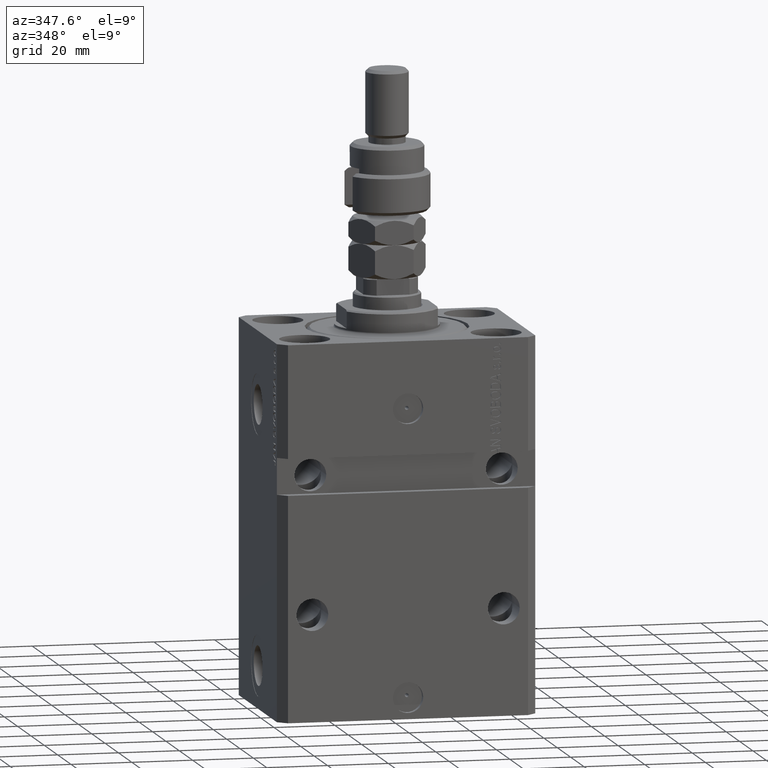
[diagram: clean part render]
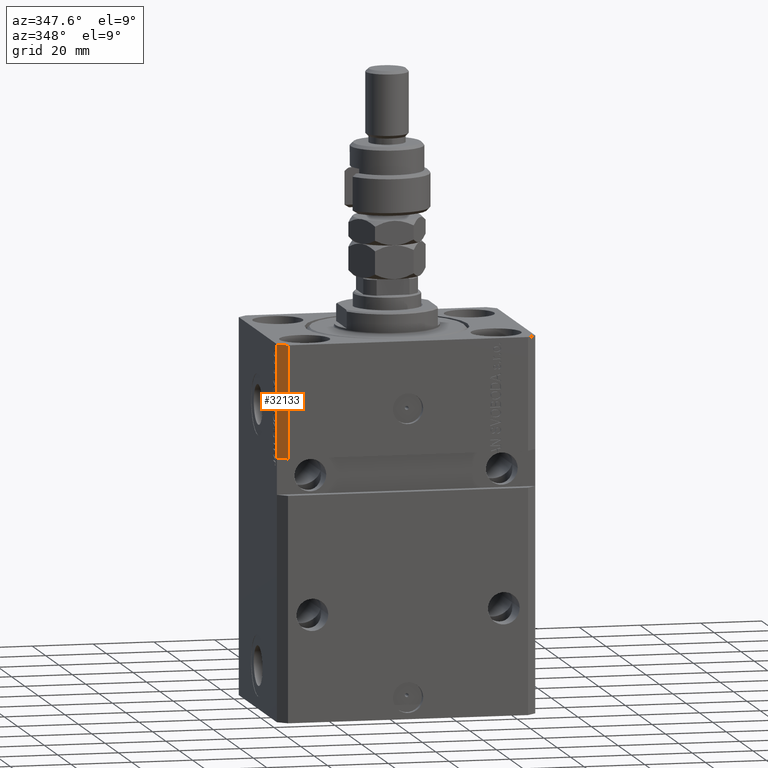
[diagram: same view with one face highlighted and labeled with its STEP entity id]
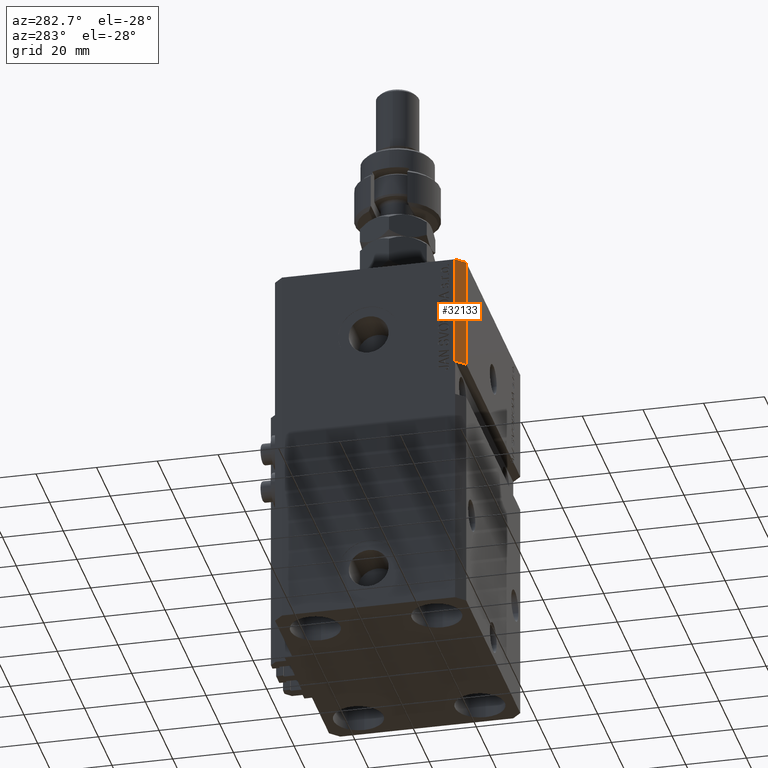
[diagram: same view with one face highlighted and labeled with its STEP entity id]
A machine part, auxiliary view. The second image highlights one B-rep face of the part: STEP entity #32133.
A second angle (auxiliary view) of the same face is appended — the face is thin or edge-on in the first view.
In plain terms, the highlighted planar face has unit normal (-0.7071, -0.7071, 0).
Its self-contained STEP definition (entity closure, byte-faithful):
#61 = ORIENTED_EDGE ( 'NONE', *, *, #24385, .T. ) ;
#376 = EDGE_CURVE ( 'NONE', #14685, #19723, #27677, .T. ) ;
#3652 = LINE ( 'NONE', #47149, #37946 ) ;
#8353 = LINE ( 'NONE', #24294, #21788 ) ;
#12322 = VERTEX_POINT ( 'NONE', #47885 ) ;
#13865 = DIRECTION ( 'NONE',  ( -0.7071067811865479058, -0.7071067811865472397, 0.000000000000000000 ) ) ;
#14685 = VERTEX_POINT ( 'NONE', #35035 ) ;
#16493 = LINE ( 'NONE', #20596, #26536 ) ;
#17205 = CARTESIAN_POINT ( 'NONE',  ( -42.50000000000000000, -28.50000000000000000, -123.0000000000000000 ) ) ;
#19723 = VERTEX_POINT ( 'NONE', #30973 ) ;
#20596 = CARTESIAN_POINT ( 'NONE',  ( -42.50000000000000000, -28.50000000000000000, -123.0000000000000000 ) ) ;
#21788 = VECTOR ( 'NONE', #48512, 1000.000000000000000 ) ;
#21915 = ORIENTED_EDGE ( 'NONE', *, *, #376, .F. ) ;
#23034 = DIRECTION ( 'NONE',  ( 0.7071067811865471286, -0.7071067811865479058, 0.000000000000000000 ) ) ;
#24294 = CARTESIAN_POINT ( 'NONE',  ( -42.50000000000000711, -28.49999999999999645, -37.00000000000000711 ) ) ;
#24385 = EDGE_CURVE ( 'NONE', #46238, #19723, #3652, .T. ) ;
#26536 = VECTOR ( 'NONE', #40415, 1000.000000000000000 ) ;
#26945 = CARTESIAN_POINT ( 'NONE',  ( -39.50000000000000000, -31.50000000000000711, -37.00000000000000711 ) ) ;
#27585 = DIRECTION ( 'NONE',  ( 0.000000000000000000, 0.000000000000000000, 1.000000000000000000 ) ) ;
#27677 = LINE ( 'NONE', #35636, #43732 ) ;
#29561 = FACE_OUTER_BOUND ( 'NONE', #45981, .T. ) ;
#30068 = DIRECTION ( 'NONE',  ( 0.7071067811865472397, -0.7071067811865479058, 0.000000000000000000 ) ) ;
#30259 = ORIENTED_EDGE ( 'NONE', *, *, #34398, .F. ) ;
#30973 = CARTESIAN_POINT ( 'NONE',  ( -39.50000000000000711, -31.50000000000000000, 0.000000000000000000 ) ) ;
#32133 = ADVANCED_FACE ( 'NONE', ( #29561 ), #49143, .T. ) ;
#34398 = EDGE_CURVE ( 'NONE', #46238, #12322, #8353, .T. ) ;
#35035 = CARTESIAN_POINT ( 'NONE',  ( -42.50000000000000000, -28.50000000000000000, 0.000000000000000000 ) ) ;
#35636 = CARTESIAN_POINT ( 'NONE',  ( -42.50000000000000000, -28.50000000000000000, 0.000000000000000000 ) ) ;
#37946 = VECTOR ( 'NONE', #27585, 1000.000000000000000 ) ;
#40415 = DIRECTION ( 'NONE',  ( 0.000000000000000000, 0.000000000000000000, 1.000000000000000000 ) ) ;
#41442 = AXIS2_PLACEMENT_3D ( 'NONE', #17205, #13865, #30068 ) ;
#43732 = VECTOR ( 'NONE', #23034, 1000.000000000000000 ) ;
#45981 = EDGE_LOOP ( 'NONE', ( #30259, #61, #21915, #47786 ) ) ;
#46238 = VERTEX_POINT ( 'NONE', #26945 ) ;
#47149 = CARTESIAN_POINT ( 'NONE',  ( -39.50000000000000711, -31.50000000000000000, -123.0000000000000000 ) ) ;
#47680 = EDGE_CURVE ( 'NONE', #12322, #14685, #16493, .T. ) ;
#47786 = ORIENTED_EDGE ( 'NONE', *, *, #47680, .F. ) ;
#47885 = CARTESIAN_POINT ( 'NONE',  ( -42.50000000000000000, -28.50000000000000711, -37.00000000000000711 ) ) ;
#48512 = DIRECTION ( 'NONE',  ( -0.7071067811865472397, 0.7071067811865479058, -5.772398745160932566E-17 ) ) ;
#49143 = PLANE ( 'NONE',  #41442 ) ;